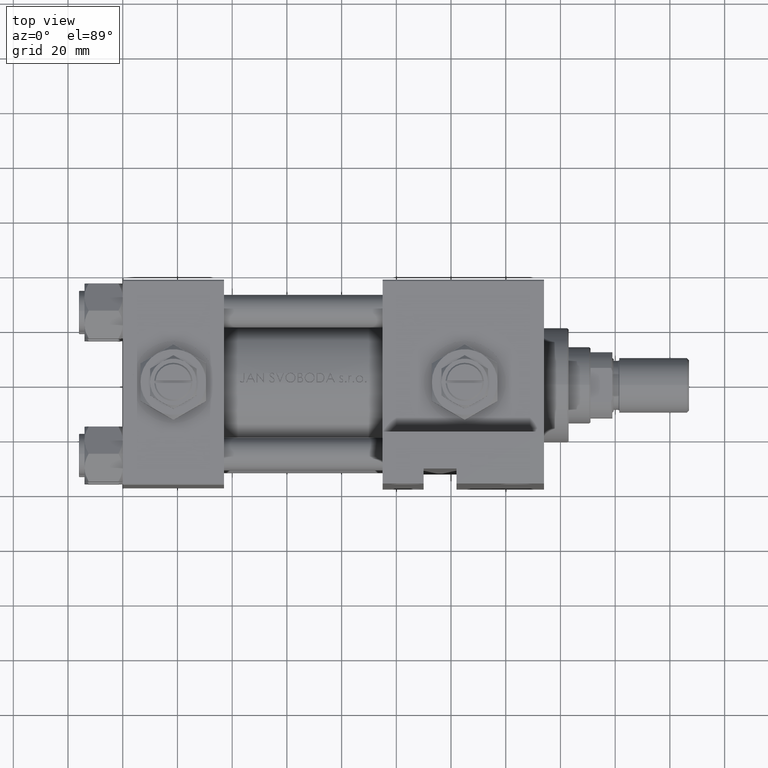
[diagram: clean part render]
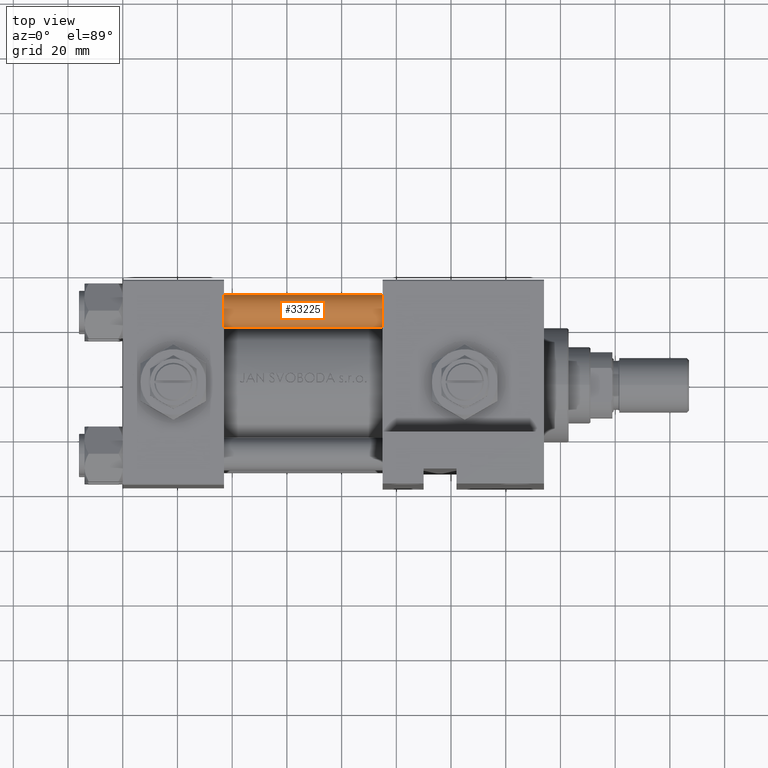
[diagram: same view with one face highlighted and labeled with its STEP entity id]
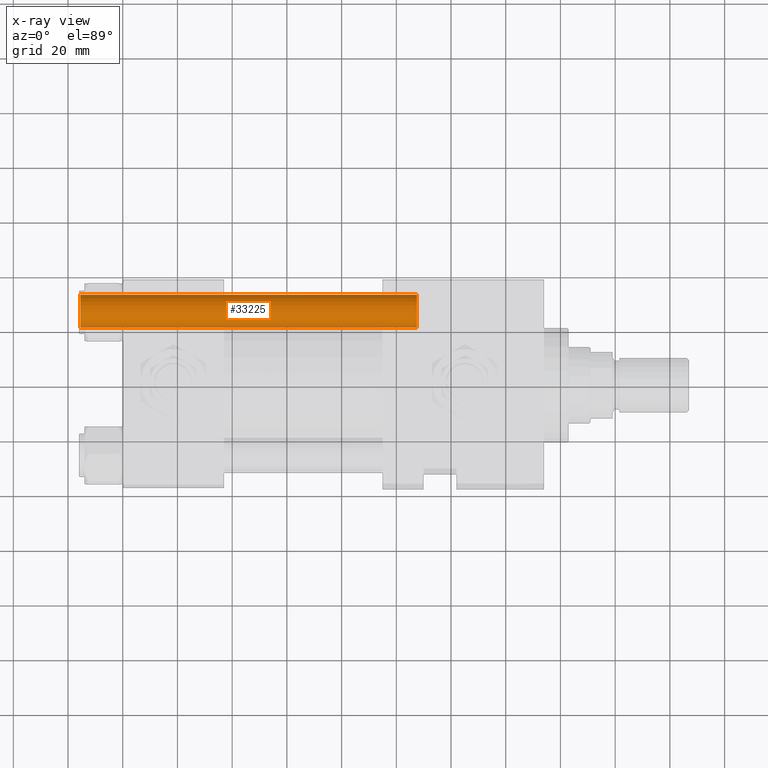
[diagram: x-ray of the same camera — body ghosted, the highlighted face saturated]
A machine part, top view. The second image highlights one B-rep face of the part: STEP entity #33225.
The next image is the same camera in x-ray: the body ghosted, the highlighted face saturated — about 0% of this face is hidden behind the body in this view.
In plain terms, the highlighted cylindrical surface (edge-blend (fillet) strip) has radius 6 mm, axis along (1, -0, 0).
Its self-contained STEP definition (entity closure, byte-faithful):
#485 = CARTESIAN_POINT ( 'NONE',  ( -6.000000000000000888, 0.000000000000000000, 123.5000000000000426 ) ) ;
#2858 = FACE_OUTER_BOUND ( 'NONE', #19402, .T. ) ;
#3429 = ORIENTED_EDGE ( 'NONE', *, *, #23251, .T. ) ;
#3946 = VERTEX_POINT ( 'NONE', #33055 ) ;
#6793 = VECTOR ( 'NONE', #23235, 1000.000000000000000 ) ;
#10409 = AXIS2_PLACEMENT_3D ( 'NONE', #42319, #30923, #46639 ) ;
#11061 = ORIENTED_EDGE ( 'NONE', *, *, #26220, .T. ) ;
#11233 = CYLINDRICAL_SURFACE ( 'NONE', #33925, 6.000000000000000888 ) ;
#12104 = VERTEX_POINT ( 'NONE', #40208 ) ;
#13450 = AXIS2_PLACEMENT_3D ( 'NONE', #44131, #35779, #40329 ) ;
#14601 = VERTEX_POINT ( 'NONE', #26445 ) ;
#15894 = LINE ( 'NONE', #30855, #6793 ) ;
#16640 = ORIENTED_EDGE ( 'NONE', *, *, #36602, .T. ) ;
#18922 = VERTEX_POINT ( 'NONE', #485 ) ;
#19402 = EDGE_LOOP ( 'NONE', ( #21955, #11061, #3429, #16640 ) ) ;
#21955 = ORIENTED_EDGE ( 'NONE', *, *, #36373, .F. ) ;
#22392 = CARTESIAN_POINT ( 'NONE',  ( 0.000000000000000000, 0.000000000000000000, 124.0000000000000000 ) ) ;
#23235 = DIRECTION ( 'NONE',  ( -0.000000000000000000, -0.000000000000000000, -1.000000000000000000 ) ) ;
#23251 = EDGE_CURVE ( 'NONE', #18922, #3946, #15894, .T. ) ;
#26220 = EDGE_CURVE ( 'NONE', #12104, #18922, #34481, .T. ) ;
#26445 = CARTESIAN_POINT ( 'NONE',  ( 6.000000000000000888, 7.347880794884120722E-16, 0.4999999999999865663 ) ) ;
#30492 = DIRECTION ( 'NONE',  ( -0.000000000000000000, -0.000000000000000000, -1.000000000000000000 ) ) ;
#30671 = VECTOR ( 'NONE', #30492, 1000.000000000000000 ) ;
#30855 = CARTESIAN_POINT ( 'NONE',  ( -6.000000000000000888, 0.000000000000000000, 124.0000000000000000 ) ) ;
#30923 = DIRECTION ( 'NONE',  ( -0.000000000000000000, -0.000000000000000000, 1.000000000000000000 ) ) ;
#33055 = CARTESIAN_POINT ( 'NONE',  ( -6.000000000000000888, 0.000000000000000000, 0.4999999999999865663 ) ) ;
#33225 = ADVANCED_FACE ( 'NONE', ( #2858 ), #11233, .T. ) ;
#33925 = AXIS2_PLACEMENT_3D ( 'NONE', #22392, #38364, #37867 ) ;
#34481 = CIRCLE ( 'NONE', #13450, 6.000000000000000888 ) ;
#35779 = DIRECTION ( 'NONE',  ( 0.000000000000000000, 0.000000000000000000, -1.000000000000000000 ) ) ;
#36373 = EDGE_CURVE ( 'NONE', #12104, #14601, #41895, .T. ) ;
#36602 = EDGE_CURVE ( 'NONE', #3946, #14601, #41190, .T. ) ;
#37867 = DIRECTION ( 'NONE',  ( -1.000000000000000000, 0.000000000000000000, 0.000000000000000000 ) ) ;
#38364 = DIRECTION ( 'NONE',  ( -0.000000000000000000, -0.000000000000000000, -1.000000000000000000 ) ) ;
#40208 = CARTESIAN_POINT ( 'NONE',  ( 6.000000000000000888, 7.347880794884120722E-16, 123.5000000000000426 ) ) ;
#40329 = DIRECTION ( 'NONE',  ( 1.000000000000000000, 0.000000000000000000, 0.000000000000000000 ) ) ;
#41141 = CARTESIAN_POINT ( 'NONE',  ( 6.000000000000000888, 7.347880794884120722E-16, 124.0000000000000000 ) ) ;
#41190 = CIRCLE ( 'NONE', #10409, 6.000000000000000888 ) ;
#41895 = LINE ( 'NONE', #41141, #30671 ) ;
#42319 = CARTESIAN_POINT ( 'NONE',  ( 0.000000000000000000, 0.000000000000000000, 0.4999999999999865663 ) ) ;
#44131 = CARTESIAN_POINT ( 'NONE',  ( 0.000000000000000000, 0.000000000000000000, 123.5000000000000426 ) ) ;
#46639 = DIRECTION ( 'NONE',  ( 1.000000000000000000, 0.000000000000000000, 0.000000000000000000 ) ) ;